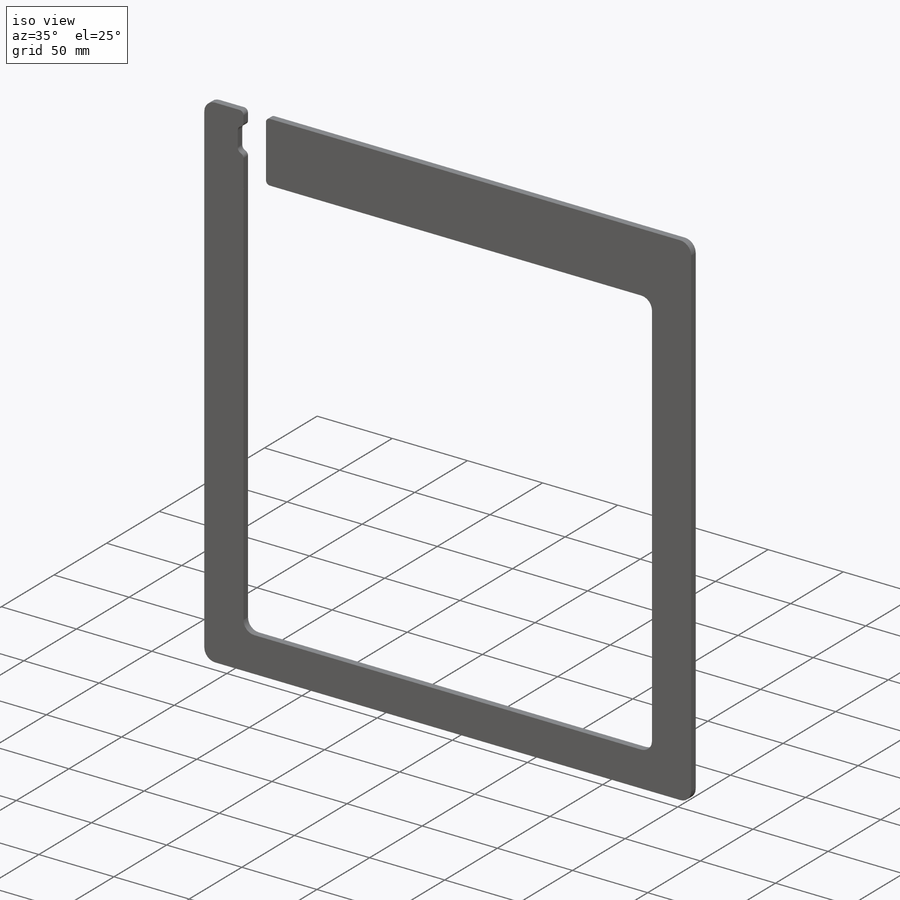
[diagram: iso view]
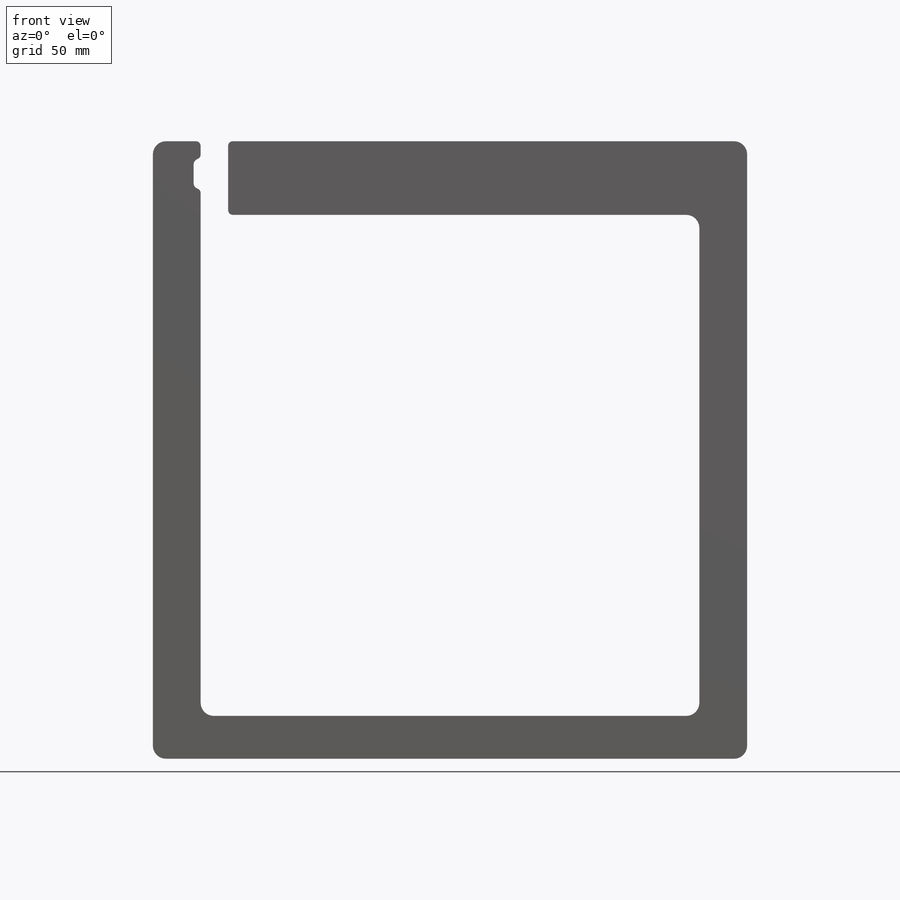
[diagram: front view]
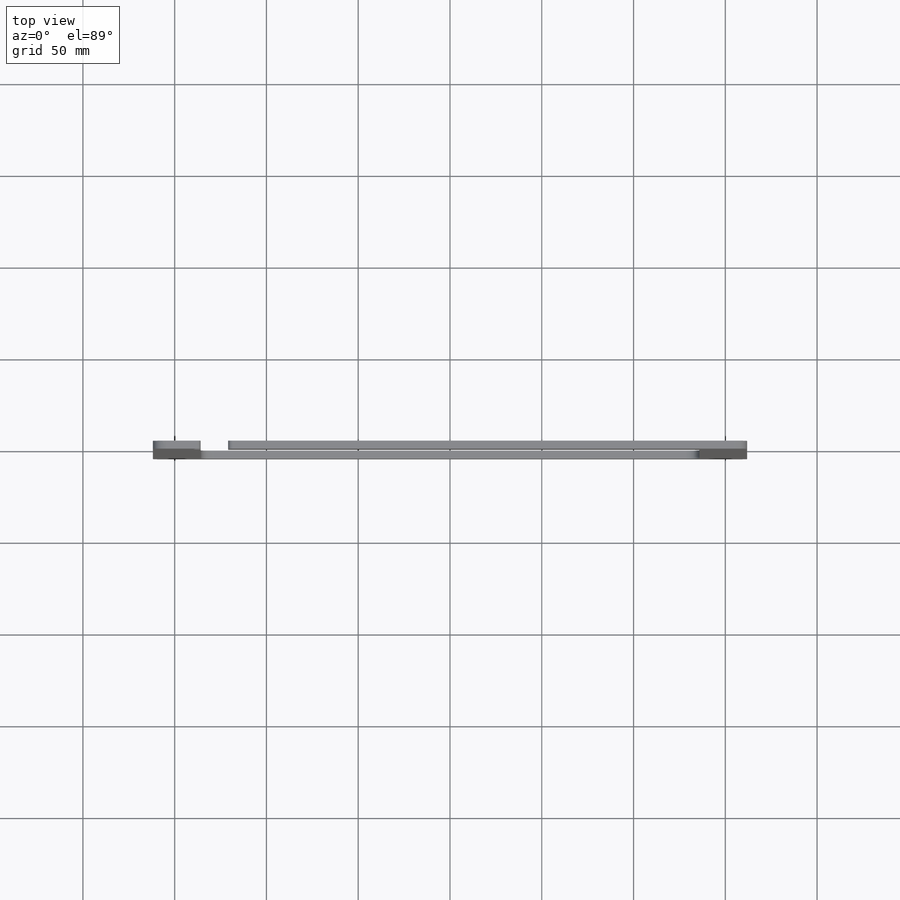
[diagram: top view]
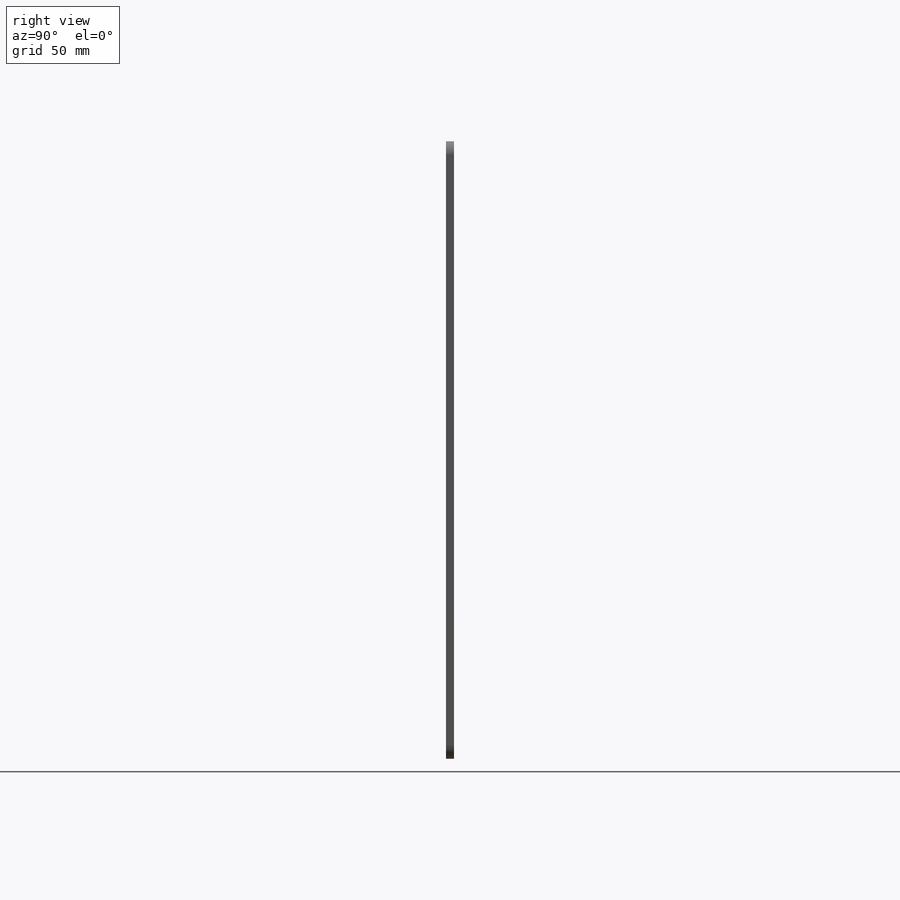
[diagram: right view]
SOLIDWORKS PART (.sldprt)
format: sldprt  version: not decoded by parser v0  size: 237,056 bytes
history: native  units: mm
features: sketch x4, cut_extrude x3, fillet x2, material x1, extrude x1 (+12 scaffold rows collapsed)
feature tree (23):
  scaffold x12  (default folders/planes/origin — collapsed)
  material  "Material <not specified>"
  sketch  "Sketch1"  dims[D1=323.85mm D2=336.55mm]
  extrude  "Boss-Extrude1"  Depth=4.3434mm
  sketch  "Sketch2"  dims[D1=271.78mm D2=273.05mm D3=23.368mm]
  cut_extrude  "Cut-Extrude1"  [1 undecoded]
  fillet  "Fillet1"  Radius=7.14375mm
  sketch  "Sketch3"  dims[c1.D1=6.35mm c1.D2=25.4mm c1.D3=15.2908mm c1.D4=12.7mm c2.D3=22.86mm]
  cut_extrude  "Cut-Extrude2"  [1 undecoded]
  sketch  "Sketch4"
  cut_extrude  "Cut-Extrude3"  [1 undecoded]
  fillet  "Fillet2"  Radius=2.54mm
decode coverage: 6 of 10 modeling features carry decoded parameters
note: 3 parameter values undecoded
summary: no parameter record found for 3 features
note: suppression state not decoded; provenance and decode notes live in map.json
